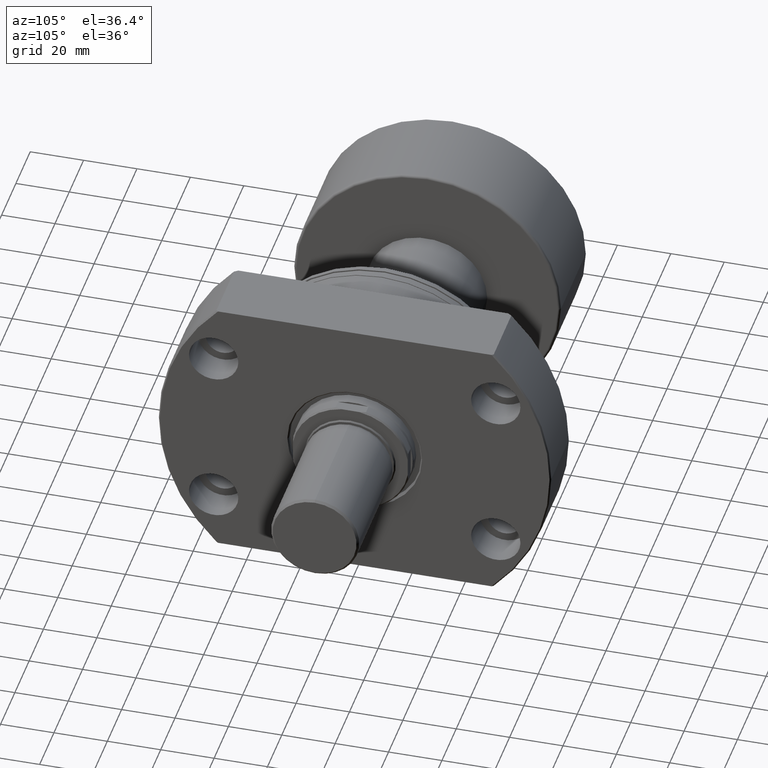
[diagram: clean part render]
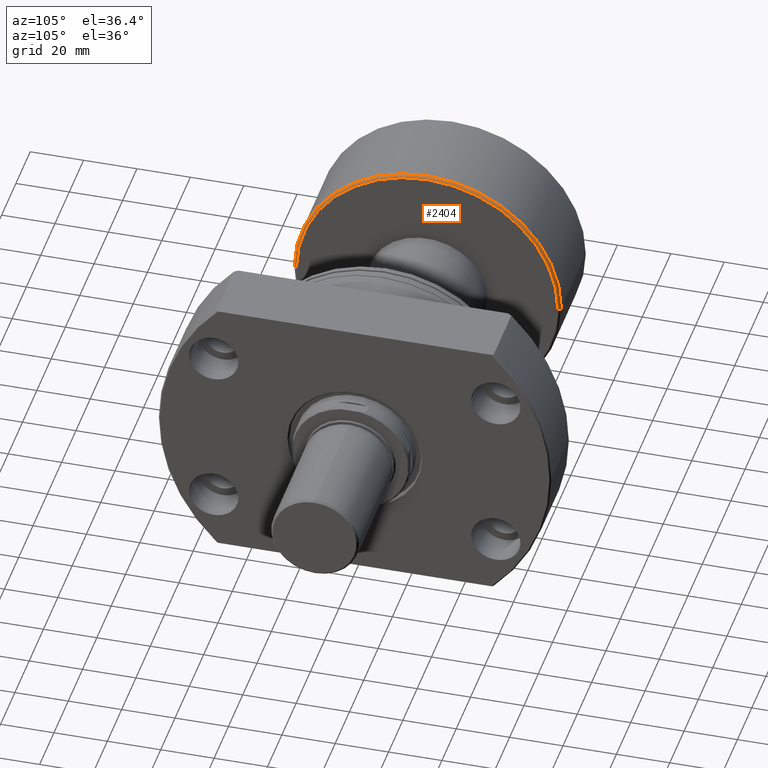
[diagram: same view with one face highlighted and labeled with its STEP entity id]
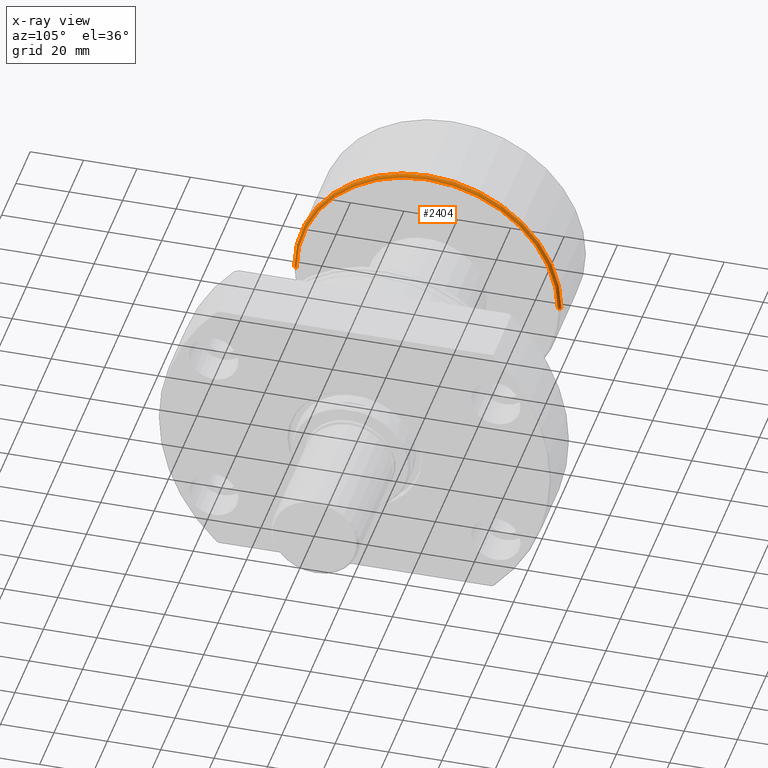
[diagram: x-ray of the same camera — body ghosted, the highlighted face saturated]
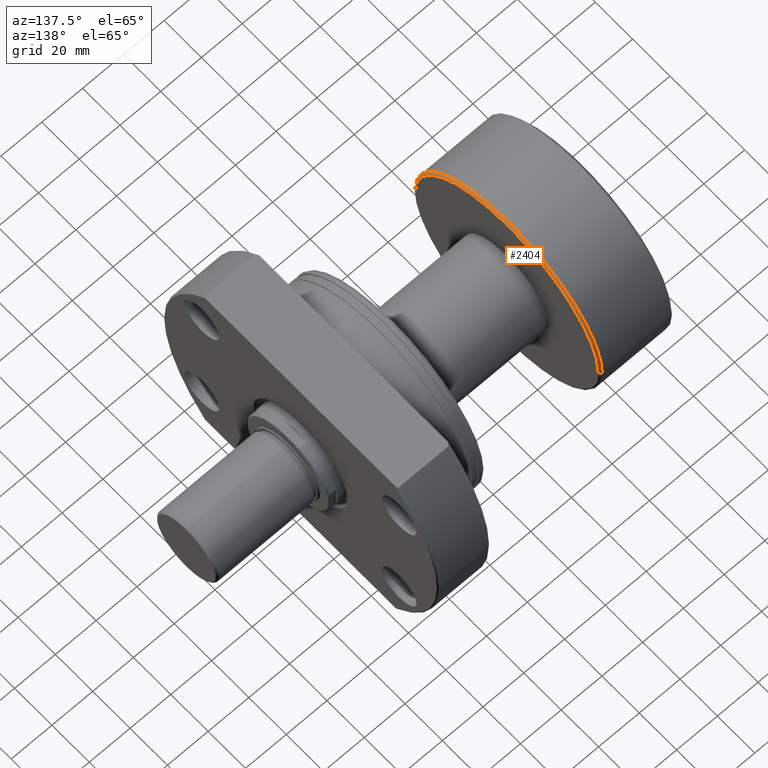
[diagram: same view with one face highlighted and labeled with its STEP entity id]
A machine part, auxiliary view. The second image highlights one B-rep face of the part: STEP entity #2404.
The next image is the same camera in x-ray: the body ghosted, the highlighted face saturated — about 0% of this face is hidden behind the body in this view.
A second angle (auxiliary view) of the same face is appended — the face is thin or edge-on in the first view.
In plain terms, the highlighted toroidal blend (fillet) surface has major radius 49 mm and minor (blend) radius 1 mm.
Its self-contained STEP definition (entity closure, byte-faithful):
#19 = AXIS2_PLACEMENT_3D ( 'NONE', #2241, #1623, #2207 ) ;
#102 = VERTEX_POINT ( 'NONE', #2352 ) ;
#212 = DIRECTION ( 'NONE',  ( -1.000000000000000000, -1.069542322069065801E-17, -0.000000000000000000 ) ) ;
#213 = AXIS2_PLACEMENT_3D ( 'NONE', #3542, #2946, #335 ) ;
#329 = AXIS2_PLACEMENT_3D ( 'NONE', #1033, #2422, #512 ) ;
#335 = DIRECTION ( 'NONE',  ( 1.069542322069065955E-17, -1.000000000000000000, 0.000000000000000000 ) ) ;
#512 = DIRECTION ( 'NONE',  ( -1.000000000000000000, 0.000000000000000000, 0.000000000000000000 ) ) ;
#585 = DIRECTION ( 'NONE',  ( 0.000000000000000000, -1.000000000000000000, -1.224646799147349509E-16 ) ) ;
#589 = CARTESIAN_POINT ( 'NONE',  ( 35.70000000000000284, 50.00000000000000000, 6.123233995736766085E-15 ) ) ;
#714 = EDGE_LOOP ( 'NONE', ( #2760, #2578, #3301, #968 ) ) ;
#734 = EDGE_CURVE ( 'NONE', #102, #1074, #1630, .T. ) ;
#790 = VERTEX_POINT ( 'NONE', #589 ) ;
#968 = ORIENTED_EDGE ( 'NONE', *, *, #2631, .F. ) ;
#1009 = CARTESIAN_POINT ( 'NONE',  ( 35.70000000000000284, -50.00000000000000000, 0.000000000000000000 ) ) ;
#1027 = CARTESIAN_POINT ( 'NONE',  ( 36.70000000000000284, 49.00000000000000000, 6.062001655779398511E-15 ) ) ;
#1033 = CARTESIAN_POINT ( 'NONE',  ( 35.70000000000000284, -49.00000000000000000, 0.000000000000000000 ) ) ;
#1074 = VERTEX_POINT ( 'NONE', #1027 ) ;
#1119 = TOROIDAL_SURFACE ( 'NONE', #213, 49.00000000000000000, 1.000000000000000888 ) ;
#1258 = FACE_OUTER_BOUND ( 'NONE', #714, .T. ) ;
#1349 = EDGE_CURVE ( 'NONE', #1074, #790, #1511, .T. ) ;
#1351 = CARTESIAN_POINT ( 'NONE',  ( 35.70000000000000284, 3.818266089786565135E-16, 0.000000000000000000 ) ) ;
#1511 = CIRCLE ( 'NONE', #1636, 1.000000000000000888 ) ;
#1623 = DIRECTION ( 'NONE',  ( -1.000000000000000000, -1.069542322069065801E-17, -0.000000000000000000 ) ) ;
#1630 = CIRCLE ( 'NONE', #19, 49.00000000000000000 ) ;
#1636 = AXIS2_PLACEMENT_3D ( 'NONE', #2025, #3134, #585 ) ;
#2025 = CARTESIAN_POINT ( 'NONE',  ( 35.70000000000000284, 49.00000000000000000, 6.000769315822030937E-15 ) ) ;
#2207 = DIRECTION ( 'NONE',  ( 0.000000000000000000, -1.000000000000000000, 0.000000000000000000 ) ) ;
#2241 = CARTESIAN_POINT ( 'NONE',  ( 36.70000000000000284, 3.925220321993471577E-16, 0.000000000000000000 ) ) ;
#2352 = CARTESIAN_POINT ( 'NONE',  ( 36.70000000000000284, -49.00000000000000000, 0.000000000000000000 ) ) ;
#2404 = ADVANCED_FACE ( 'NONE', ( #1258 ), #1119, .T. ) ;
#2422 = DIRECTION ( 'NONE',  ( 0.000000000000000000, 0.000000000000000000, -1.000000000000000000 ) ) ;
#2514 = DIRECTION ( 'NONE',  ( 0.000000000000000000, -1.000000000000000000, 0.000000000000000000 ) ) ;
#2578 = ORIENTED_EDGE ( 'NONE', *, *, #1349, .T. ) ;
#2631 = EDGE_CURVE ( 'NONE', #102, #2883, #3544, .T. ) ;
#2760 = ORIENTED_EDGE ( 'NONE', *, *, #734, .T. ) ;
#2883 = VERTEX_POINT ( 'NONE', #1009 ) ;
#2946 = DIRECTION ( 'NONE',  ( -1.000000000000000000, -1.069542322069065801E-17, -0.000000000000000000 ) ) ;
#3134 = DIRECTION ( 'NONE',  ( 1.309811581274509052E-33, -1.224646799147353207E-16, 1.000000000000000000 ) ) ;
#3258 = CIRCLE ( 'NONE', #3494, 50.00000000000000000 ) ;
#3301 = ORIENTED_EDGE ( 'NONE', *, *, #3547, .F. ) ;
#3494 = AXIS2_PLACEMENT_3D ( 'NONE', #1351, #212, #2514 ) ;
#3542 = CARTESIAN_POINT ( 'NONE',  ( 35.70000000000000284, 0.000000000000000000, 0.000000000000000000 ) ) ;
#3544 = CIRCLE ( 'NONE', #329, 1.000000000000000888 ) ;
#3547 = EDGE_CURVE ( 'NONE', #2883, #790, #3258, .T. ) ;